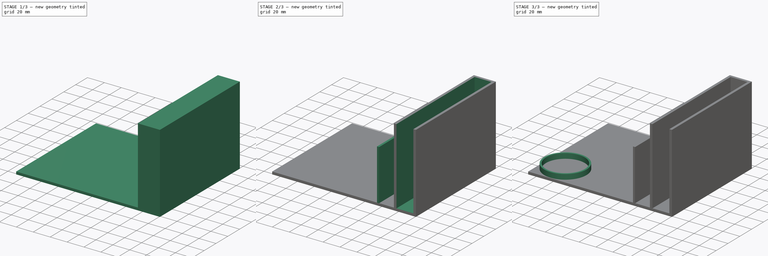
[diagram: build sequence overview — one tinted view per stage of 3, left to right]
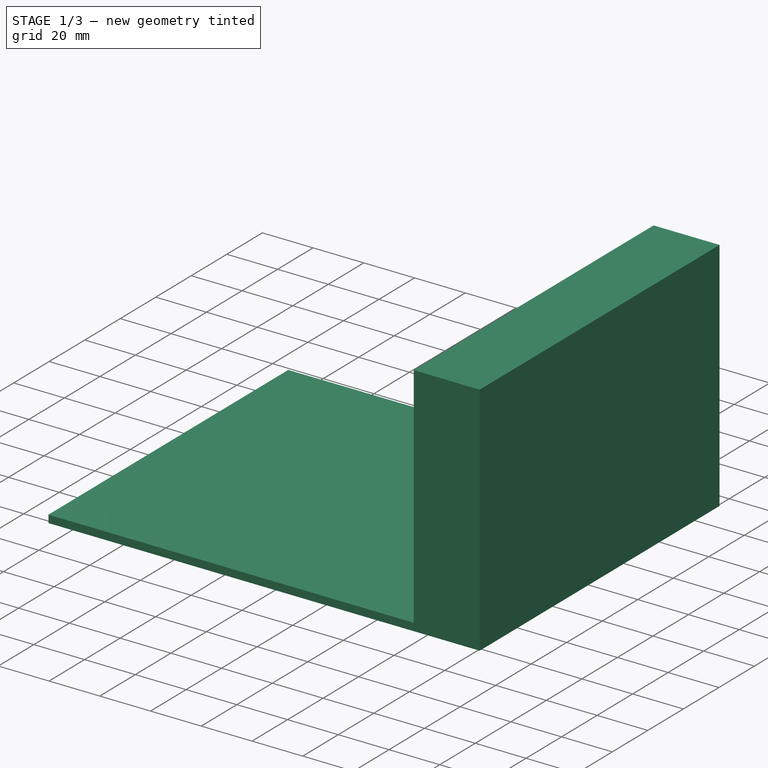
[diagram: stage 1 of 3 — iso view after this stage's code; geometry added in this stage tinted green]
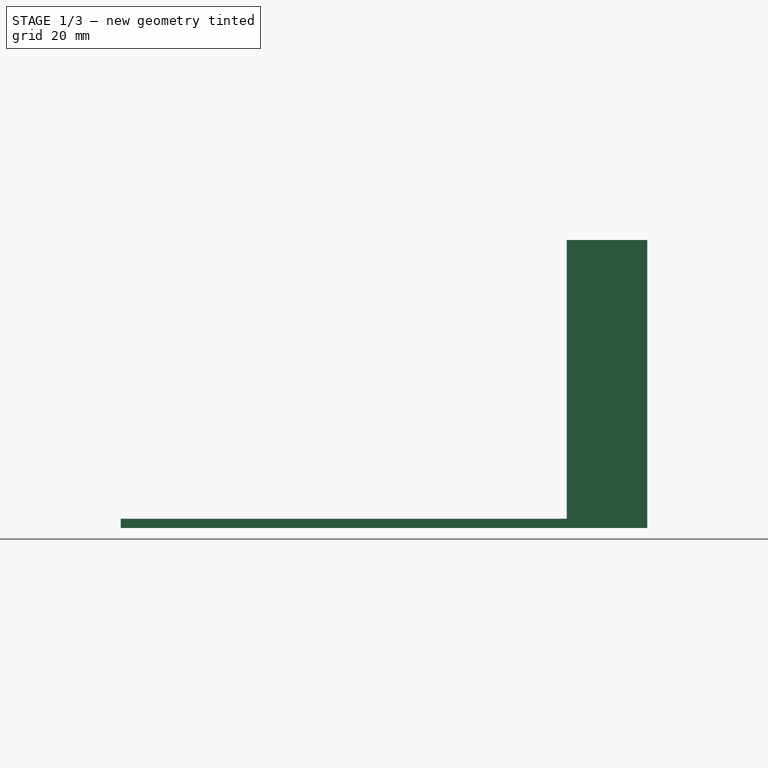
[diagram: stage 1 of 3 — front view after this stage's code; geometry added in this stage tinted green]
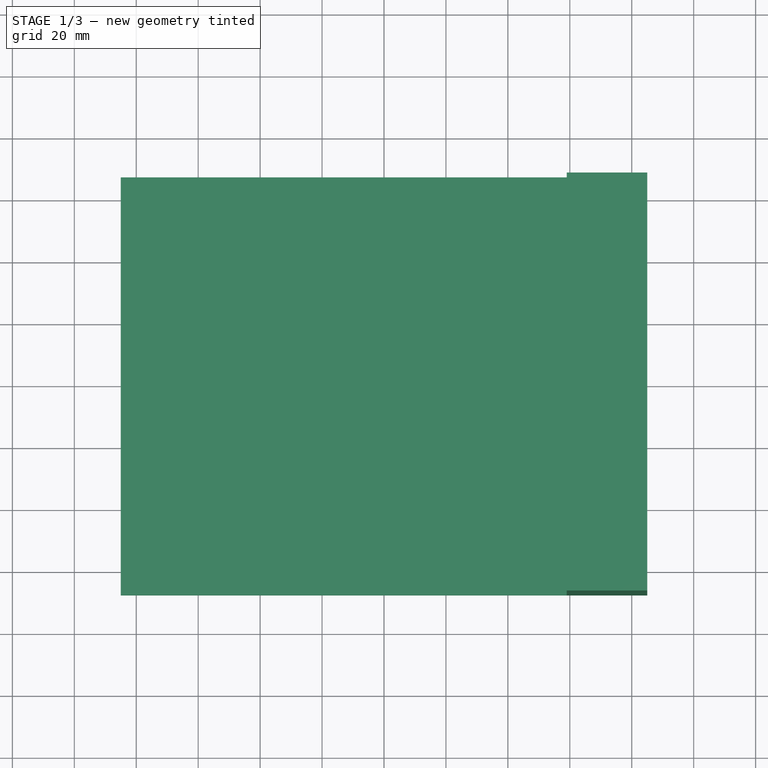
[diagram: stage 1 of 3 — top view after this stage's code; geometry added in this stage tinted green]
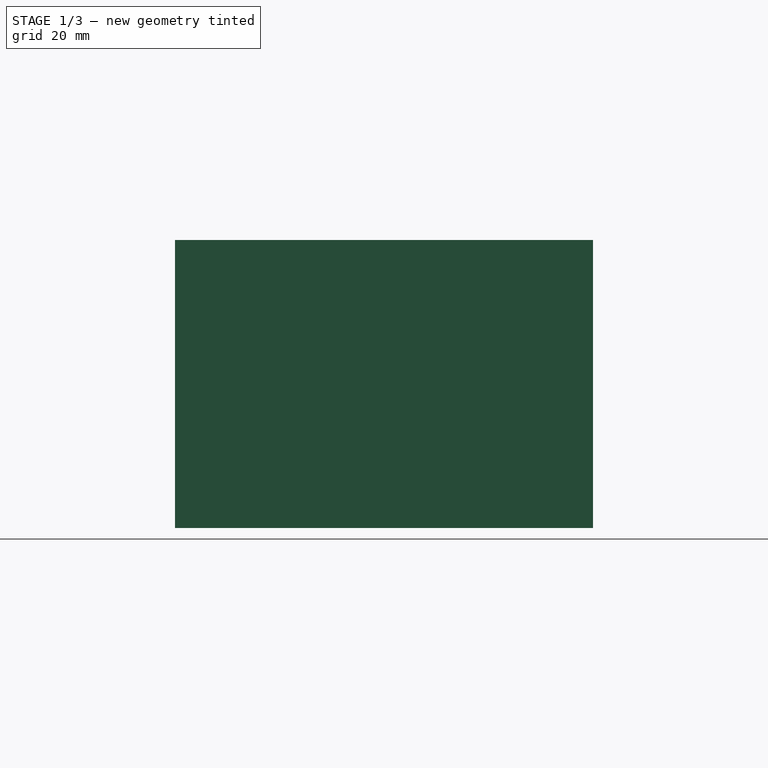
[diagram: stage 1 of 3 — right view after this stage's code; geometry added in this stage tinted green]
FCSTD DOCUMENT  (FreeCAD 0.19R24291 (Git))
Label: organizer
License: All rights reserved
LicenseURL: http://en.wikipedia.org/wiki/All_rights_reserved
objects: Sketcher::SketchObject×10, PartDesign::Pad×4, PartDesign::Pocket×3, PartDesign::Body×1
note: 25 computed .brp shape members not serialized (recipe doc carries the construction recipe); baked Part::Feature solids carry a one-line shape summary decoded from their .brp

FEATURE [Sketcher::SketchObject] Sketch
  FullyConstrained = true
  MapMode = 5
  Support = -> [XY_Plane]
  sketch-geometry (4):
    g0: LineSegment StartX=-85 StartY=67.5 StartZ=0 EndX=85 EndY=67.5 EndZ=0
    g1: LineSegment StartX=85 StartY=67.5 StartZ=0 EndX=85 EndY=-67.5 EndZ=0
    g2: LineSegment StartX=85 StartY=-67.5 StartZ=0 EndX=-85 EndY=-67.5 EndZ=0
    g3: LineSegment StartX=-85 StartY=-67.5 StartZ=0 EndX=-85 EndY=67.5 EndZ=0
  constraints (10):
    c: Coincident(g0,g1)
    c: Coincident(g1,g2)
    c: Coincident(g2,g3)
    c: Coincident(g3,g0)
    c: Horizontal(g0)
    c: Vertical(g3)
    c: Symmetric(g1,g2,g-2)
    c: Symmetric(g0,g1,g-1)
    c: DistanceY(g1,g1) = 135
    c: DistanceX(g0,g0) = 170
FEATURE [PartDesign::Pad] Pad
  Direction = (1,1,1)
  Length = 3
  Length2 = 100
  Profile = -> Sketch
  Type = 0
FEATURE [Sketcher::SketchObject] Sketch001
  ExternalGeometry = -> [Pad]
  FullyConstrained = true
  MapMode = 5
  Placement = pos=(0,0,3) rot=(0,0,1;0rad)
  Support = -> [Pad]
  sketch-geometry (4):
    g0: LineSegment StartX=85 StartY=67.5 StartZ=0 EndX=59 EndY=67.5 EndZ=0
    g1: LineSegment StartX=59 StartY=67.5 StartZ=0 EndX=59 EndY=-67.5 EndZ=0
    g2: LineSegment StartX=59 StartY=-67.5 StartZ=0 EndX=85 EndY=-67.5 EndZ=0
    g3: LineSegment StartX=85 StartY=-67.5 StartZ=0 EndX=85 EndY=67.5 EndZ=0
  constraints (11):
    c: Coincident(g0,g1)
    c: Coincident(g1,g2)
    c: Coincident(g2,g3)
    c: Coincident(g3,g0)
    c: Horizontal(g0)
    c: Horizontal(g2)
    c: Vertical(g1)
    c: Vertical(g3)
    c: Coincident(g0,g-4)
    c: PointOnObject(g1,g-5)
    c: DistanceX(g0,g0) = 26
FEATURE [PartDesign::Pad] Pad001
  BaseFeature = -> Pad
  Direction = (1,1,1)
  Length = 90
  Length2 = 100
  Profile = -> Sketch001
  Type = 0
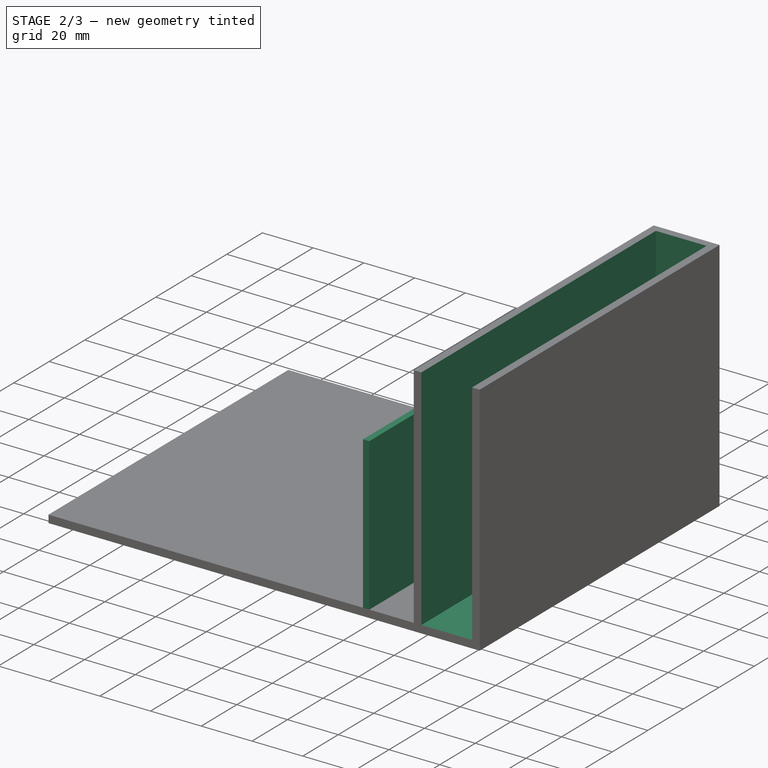
[diagram: stage 2 of 3 — iso view after this stage's code; geometry added in this stage tinted green]
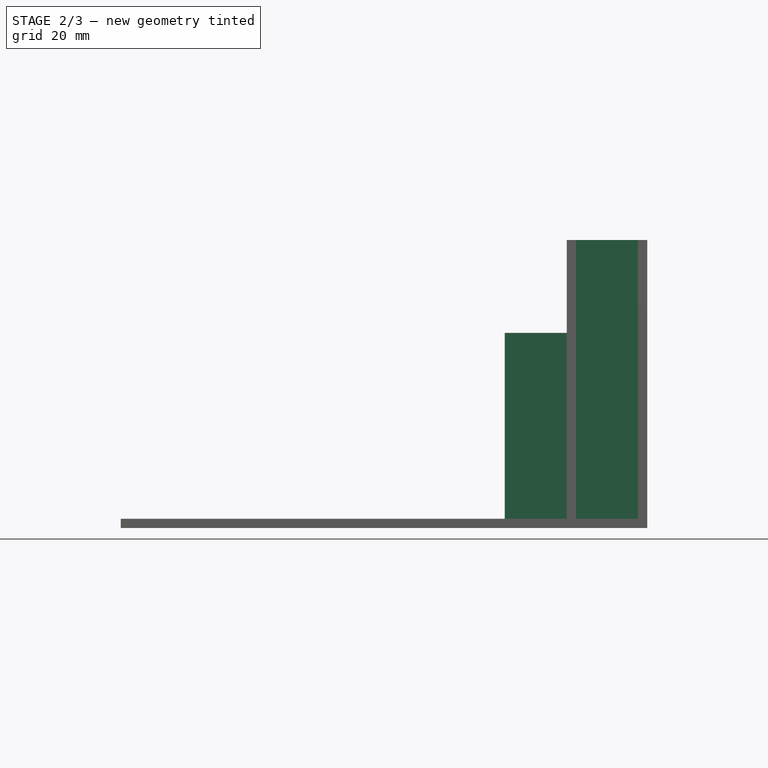
[diagram: stage 2 of 3 — front view after this stage's code; geometry added in this stage tinted green]
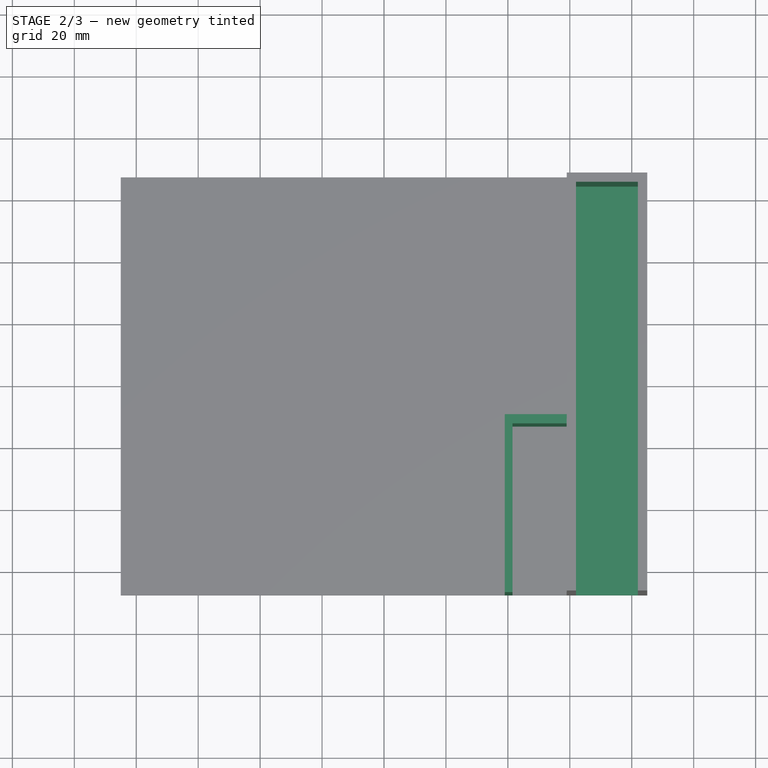
[diagram: stage 2 of 3 — top view after this stage's code; geometry added in this stage tinted green]
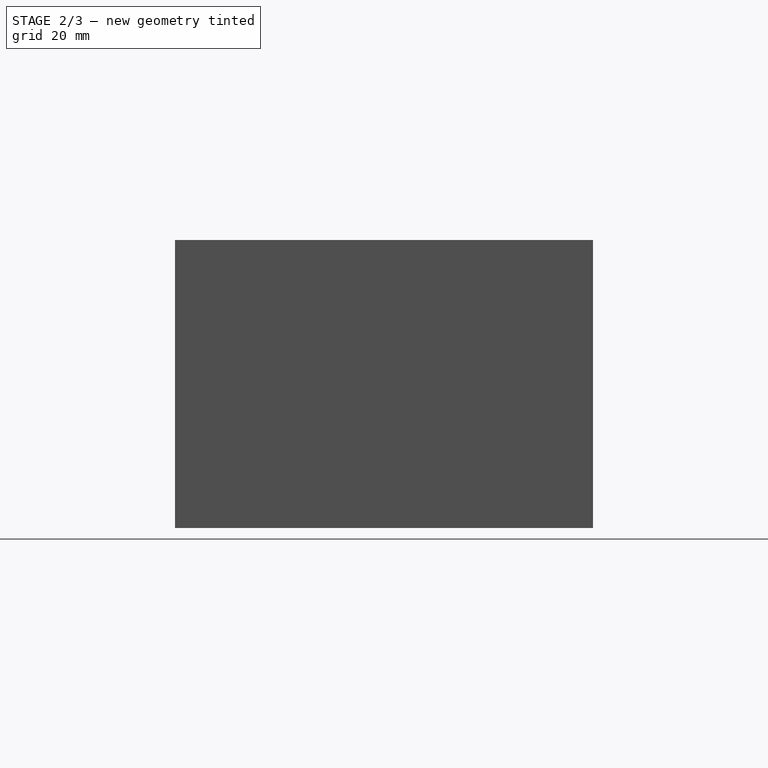
[diagram: stage 2 of 3 — right view after this stage's code; geometry added in this stage tinted green]
FEATURE [Sketcher::SketchObject] Sketch002
  ExternalGeometry = -> [Pad001]
  FullyConstrained = true
  MapMode = 5
  Placement = pos=(0,0,93) rot=(0,0,1;0rad)
  Support = -> [Pad001]
  sketch-geometry (4):
    g0: LineSegment StartX=85 StartY=-67.5 StartZ=0 EndX=82 EndY=-67.5 EndZ=0
    g1: LineSegment StartX=82 StartY=-67.5 StartZ=0 EndX=82 EndY=67.5 EndZ=0
    g2: LineSegment StartX=82 StartY=67.5 StartZ=0 EndX=85 EndY=67.5 EndZ=0
    g3: LineSegment StartX=85 StartY=67.5 StartZ=0 EndX=85 EndY=-67.5 EndZ=0
  constraints (11):
    c: Coincident(g0,g1)
    c: Coincident(g1,g2)
    c: Coincident(g2,g3)
    c: Coincident(g3,g0)
    c: Horizontal(g0)
    c: Horizontal(g2)
    c: Vertical(g1)
    c: Vertical(g3)
    c: Coincident(g0,g-3)
    c: PointOnObject(g1,g-4)
    c: DistanceX(g2,g2) = 3
FEATURE [Sketcher::SketchObject] Sketch003
  ExternalGeometry = -> [Pad001,Sketch002]
  FullyConstrained = true
  MapMode = 5
  Placement = pos=(0,0,93) rot=(0,0,1;0rad)
  Support = -> [Pad001]
  sketch-geometry (4):
    g0: LineSegment StartX=85 StartY=67.5 StartZ=0 EndX=59 EndY=67.5 EndZ=0
    g1: LineSegment StartX=59 StartY=67.5 StartZ=0 EndX=59 EndY=64.5 EndZ=0
    g2: LineSegment StartX=59 StartY=64.5 StartZ=0 EndX=85 EndY=64.5 EndZ=0
    g3: LineSegment StartX=85 StartY=64.5 StartZ=0 EndX=85 EndY=67.5 EndZ=0
  constraints (11):
    c: Coincident(g0,g1)
    c: Coincident(g1,g2)
    c: Coincident(g2,g3)
    c: Coincident(g3,g0)
    c: Horizontal(g0)
    c: Horizontal(g2)
    c: Vertical(g1)
    c: Vertical(g3)
    c: Coincident(g0,g-3)
    c: PointOnObject(g1,g-5)
    c: DistanceY(g3,g3) = 3
FEATURE [Sketcher::SketchObject] Sketch004
  ExternalGeometry = -> [Sketch003,Sketch002]
  FullyConstrained = false
  MapMode = 5
  Placement = pos=(0,0,93) rot=(0,0,1;0rad)
  Support = -> [Pad001]
  sketch-geometry (4):
    g0: LineSegment StartX=81.9886 StartY=64.5 StartZ=0 EndX=61.9886 EndY=64.5 EndZ=0
    g1: LineSegment StartX=61.9886 StartY=64.5 StartZ=0 EndX=61.9886 EndY=-72.2154 EndZ=0
    g2: LineSegment StartX=61.9886 StartY=-72.2154 StartZ=0 EndX=81.9886 EndY=-72.2154 EndZ=0
    g3: LineSegment StartX=81.9886 StartY=-72.2154 StartZ=0 EndX=81.9886 EndY=64.5 EndZ=0
  constraints (10):
    c: Coincident(g0,g1)
    c: Coincident(g1,g2)
    c: Coincident(g2,g3)
    c: Coincident(g3,g0)
    c: Horizontal(g0)
    c: Horizontal(g2)
    c: Vertical(g1)
    c: Vertical(g3)
    c: PointOnObject(g0,g-3)
    c: DistanceX(g2,g2) = 20
FEATURE [PartDesign::Pocket] Pocket
  BaseFeature = -> Pad001
  Length = 90
  Length2 = 100
  Profile = -> Sketch004
  Type = 0
FEATURE [Sketcher::SketchObject] Sketch005
  ExternalGeometry = -> [Sketch002,Sketch003,Pocket]
  FullyConstrained = true
  MapMode = 5
  Placement = pos=(0,0,3) rot=(0,0,1;0rad)
  Support = -> [Pocket]
FEATURE [Sketcher::SketchObject] Sketch006
  ExternalGeometry = -> [Pocket]
  FullyConstrained = true
  MapMode = 5
  Placement = pos=(0,0,3) rot=(0,0,1;0rad)
  Support = -> [Pocket]
  sketch-geometry (4):
    g0: LineSegment StartX=59 StartY=-67.5 StartZ=0 EndX=39 EndY=-67.5 EndZ=0
    g1: LineSegment StartX=39 StartY=-67.5 StartZ=0 EndX=39 EndY=-10 EndZ=0
    g2: LineSegment StartX=39 StartY=-10 StartZ=0 EndX=59 EndY=-10 EndZ=0
    g3: LineSegment StartX=59 StartY=-10 StartZ=0 EndX=59 EndY=-67.5 EndZ=0
  constraints (11):
    c: Coincident(g0,g1)
    c: Coincident(g1,g2)
    c: Coincident(g2,g3)
    c: Coincident(g3,g0)
    c: Horizontal(g0)
    c: Horizontal(g2)
    c: Vertical(g1)
    c: Vertical(g3)
    c: Coincident(g0,g-4)
    c: DistanceY(g1,g1) = 57.5
    c: DistanceX(g2,g2) = 20
FEATURE [PartDesign::Pad] Pad002
  BaseFeature = -> Pocket
  Direction = (1,1,1)
  Length = 60
  Length2 = 100
  Profile = -> Sketch006
  Type = 0
FEATURE [Sketcher::SketchObject] Sketch007
  ExternalGeometry = -> [Pad002]
  FullyConstrained = false
  MapMode = 5
  Placement = pos=(0,0,63) rot=(0,0,1;0rad)
  Support = -> [Pad002]
  sketch-geometry (4):
    g0: LineSegment StartX=41.4732 StartY=-67.5 StartZ=0 EndX=58.9732 EndY=-67.5 EndZ=0
    g1: LineSegment StartX=58.9732 StartY=-67.5 StartZ=0 EndX=58.9732 EndY=-13 EndZ=0
    g2: LineSegment StartX=58.9732 StartY=-13 StartZ=0 EndX=41.4732 EndY=-13 EndZ=0
    g3: LineSegment StartX=41.4732 StartY=-13 StartZ=0 EndX=41.4732 EndY=-67.5 EndZ=0
  constraints (11):
    c: Coincident(g0,g1)
    c: Coincident(g1,g2)
    c: Coincident(g2,g3)
    c: Coincident(g3,g0)
    c: Horizontal(g0)
    c: Horizontal(g2)
    c: Vertical(g1)
    c: Vertical(g3)
    c: PointOnObject(g0,g-5)
    c: DistanceX(g2,g2) = 17.5
    c: DistanceY(g3,g3) = 54.5
FEATURE [PartDesign::Pocket] Pocket001
  BaseFeature = -> Pad002
  Length = 60
  Length2 = 100
  Profile = -> Sketch007
  Type = 0
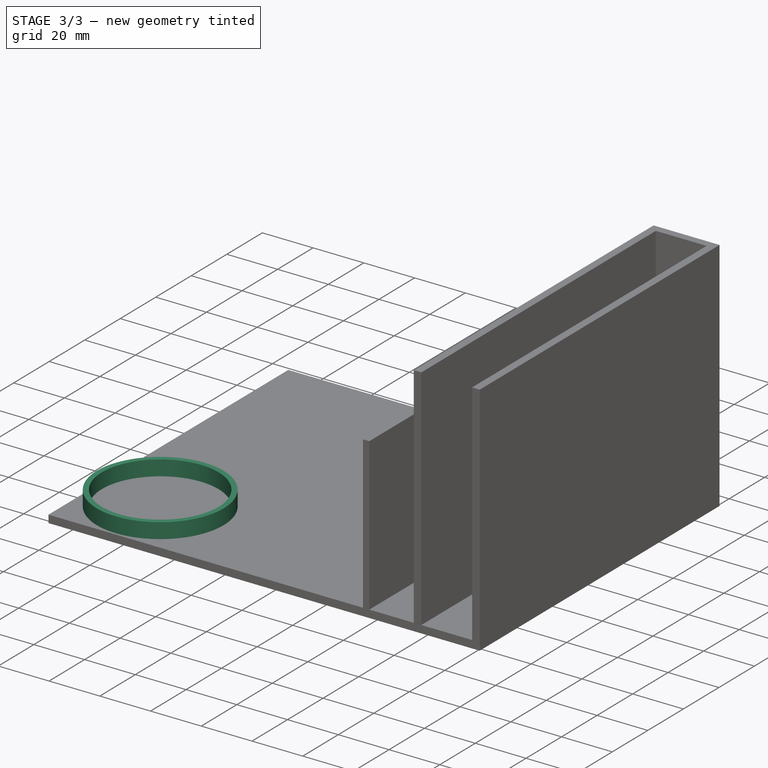
[diagram: stage 3 of 3 — iso view after this stage's code; geometry added in this stage tinted green]
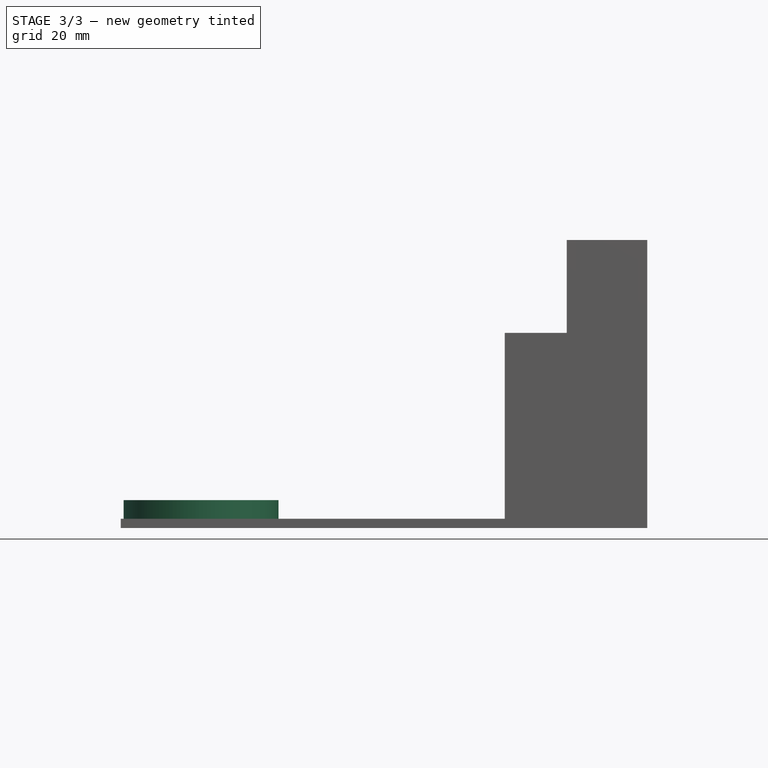
[diagram: stage 3 of 3 — front view after this stage's code; geometry added in this stage tinted green]
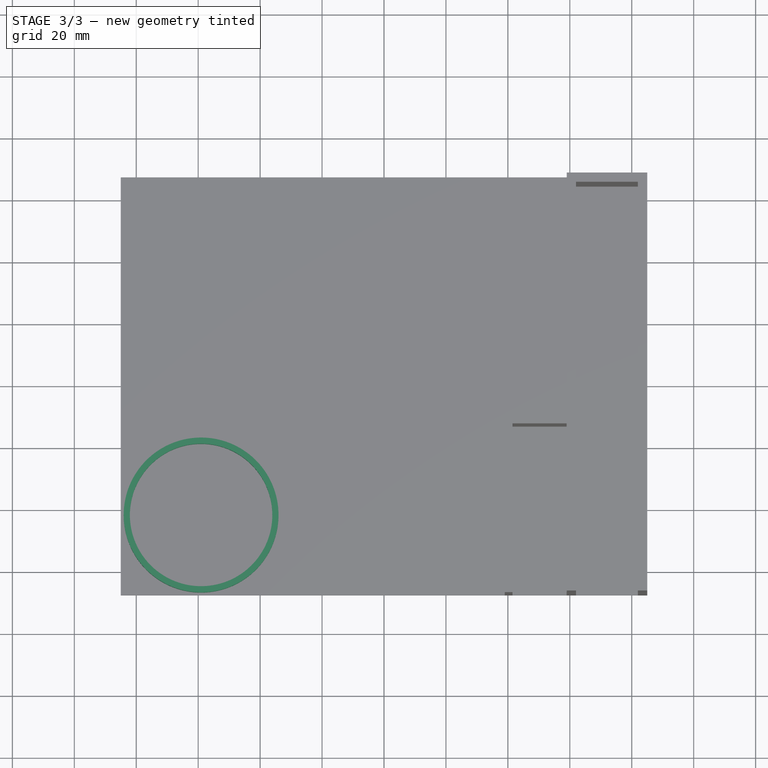
[diagram: stage 3 of 3 — top view after this stage's code; geometry added in this stage tinted green]
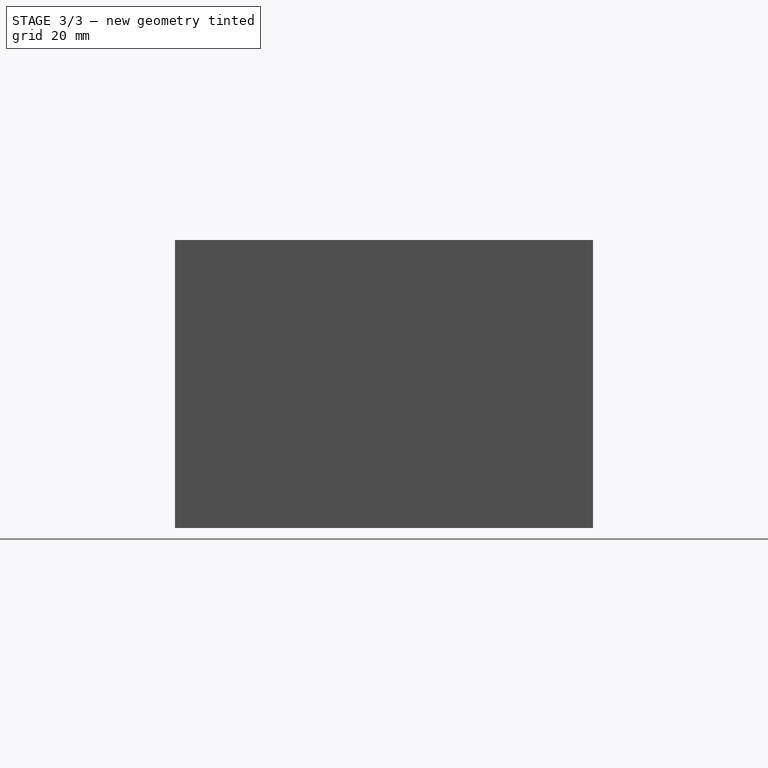
[diagram: stage 3 of 3 — right view after this stage's code; geometry added in this stage tinted green]
FEATURE [Sketcher::SketchObject] Sketch008
  FullyConstrained = false
  MapMode = 5
  Placement = pos=(0,0,3) rot=(0,0,1;0rad)
  Support = -> [Pocket001]
  sketch-geometry (1):
    g0: Circle CenterX=-59.0571 CenterY=-41.6307 CenterZ=0 NormalX=0 NormalY=0 NormalZ=1 AngleXU=0 Radius=25
  constraints (1):
    c: Diameter(g0) = 50
FEATURE [PartDesign::Pad] Pad003
  BaseFeature = -> Pocket001
  Direction = (1,1,1)
  Length = 6
  Length2 = 100
  Profile = -> Sketch008
  Type = 0
FEATURE [Sketcher::SketchObject] Sketch009
  ExternalGeometry = -> [Pad003]
  FullyConstrained = true
  MapMode = 5
  Placement = pos=(0,0,9) rot=(0,0,1;0rad)
  Support = -> [Pad003]
  sketch-geometry (1):
    g0: Circle CenterX=-59.0571 CenterY=-41.6307 CenterZ=0 NormalX=0 NormalY=0 NormalZ=1 AngleXU=0 Radius=23
  constraints (2):
    c: Coincident(g0,g-3)
    c: Diameter(g0) = 46
FEATURE [PartDesign::Pocket] Pocket002
  BaseFeature = -> Pad003
  Length = 6
  Length2 = 100
  Profile = -> Sketch009
  Type = 0
FEATURE [PartDesign::Body] Body
  Group = -> [Sketch,Pad,Sketch001,Pad001,Sketch002,Sketch003,Sketch004,Pocket,Sketch005,Sketch006,Pad002,Sketch007,Pocket001,Sketch008,Pad003,Sketch009,Pocket002]
  Origin = -> Origin
  Tip = -> Pocket002
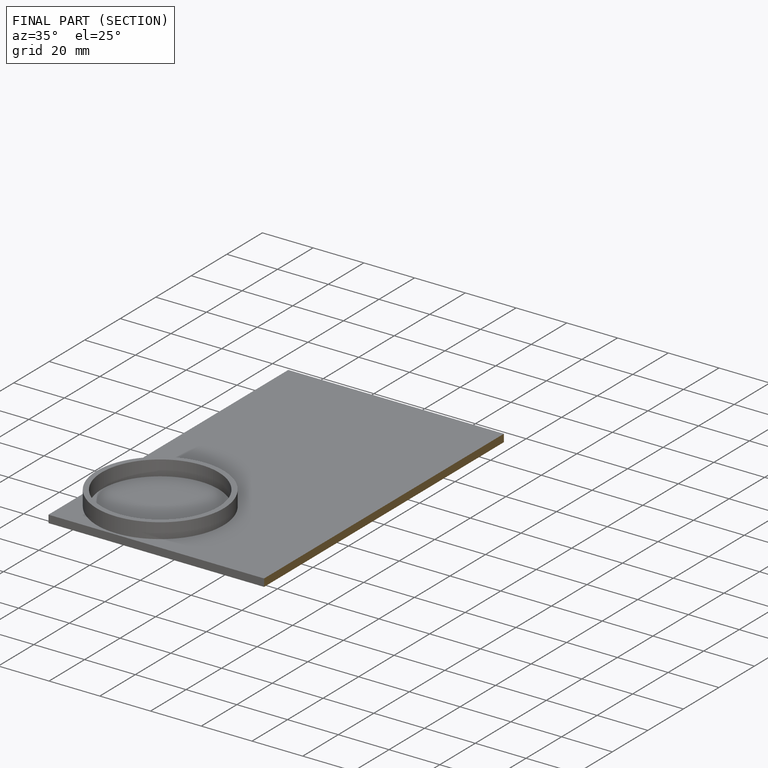
[diagram: finished part — half-section view (interior)]
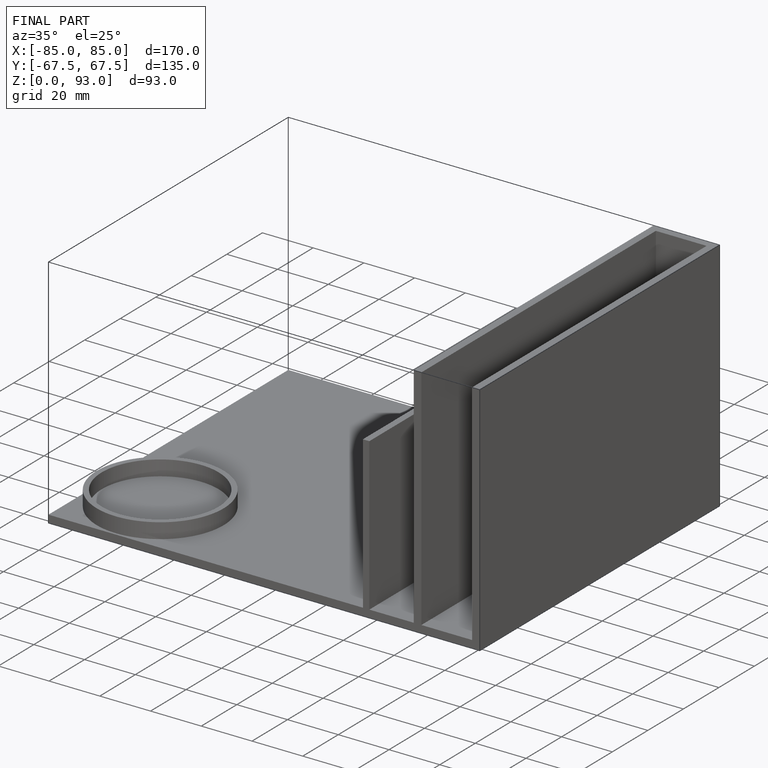
[diagram: finished part — iso view with bounding-box wireframe]
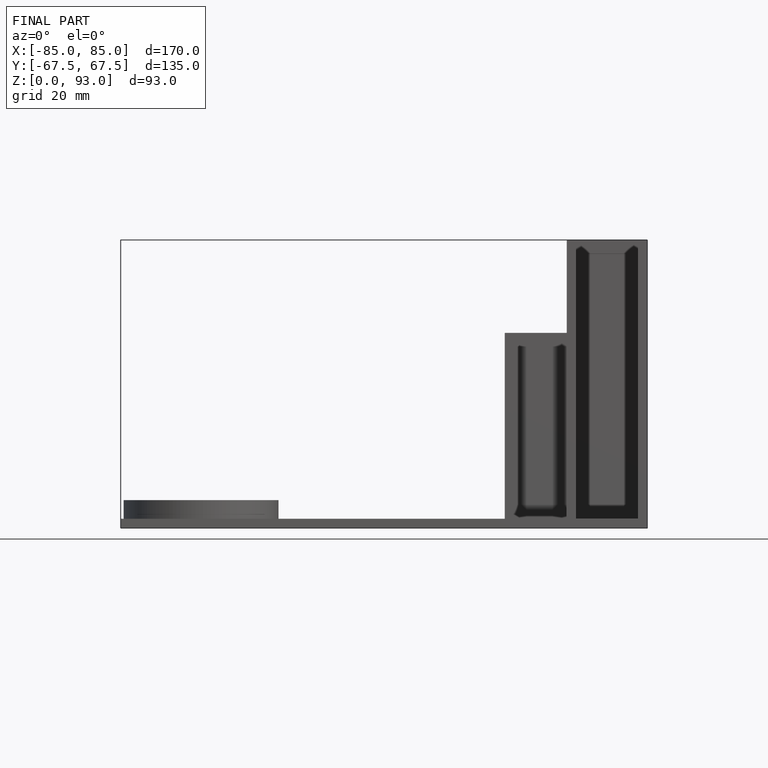
[diagram: finished part — front view with bounding-box wireframe]
